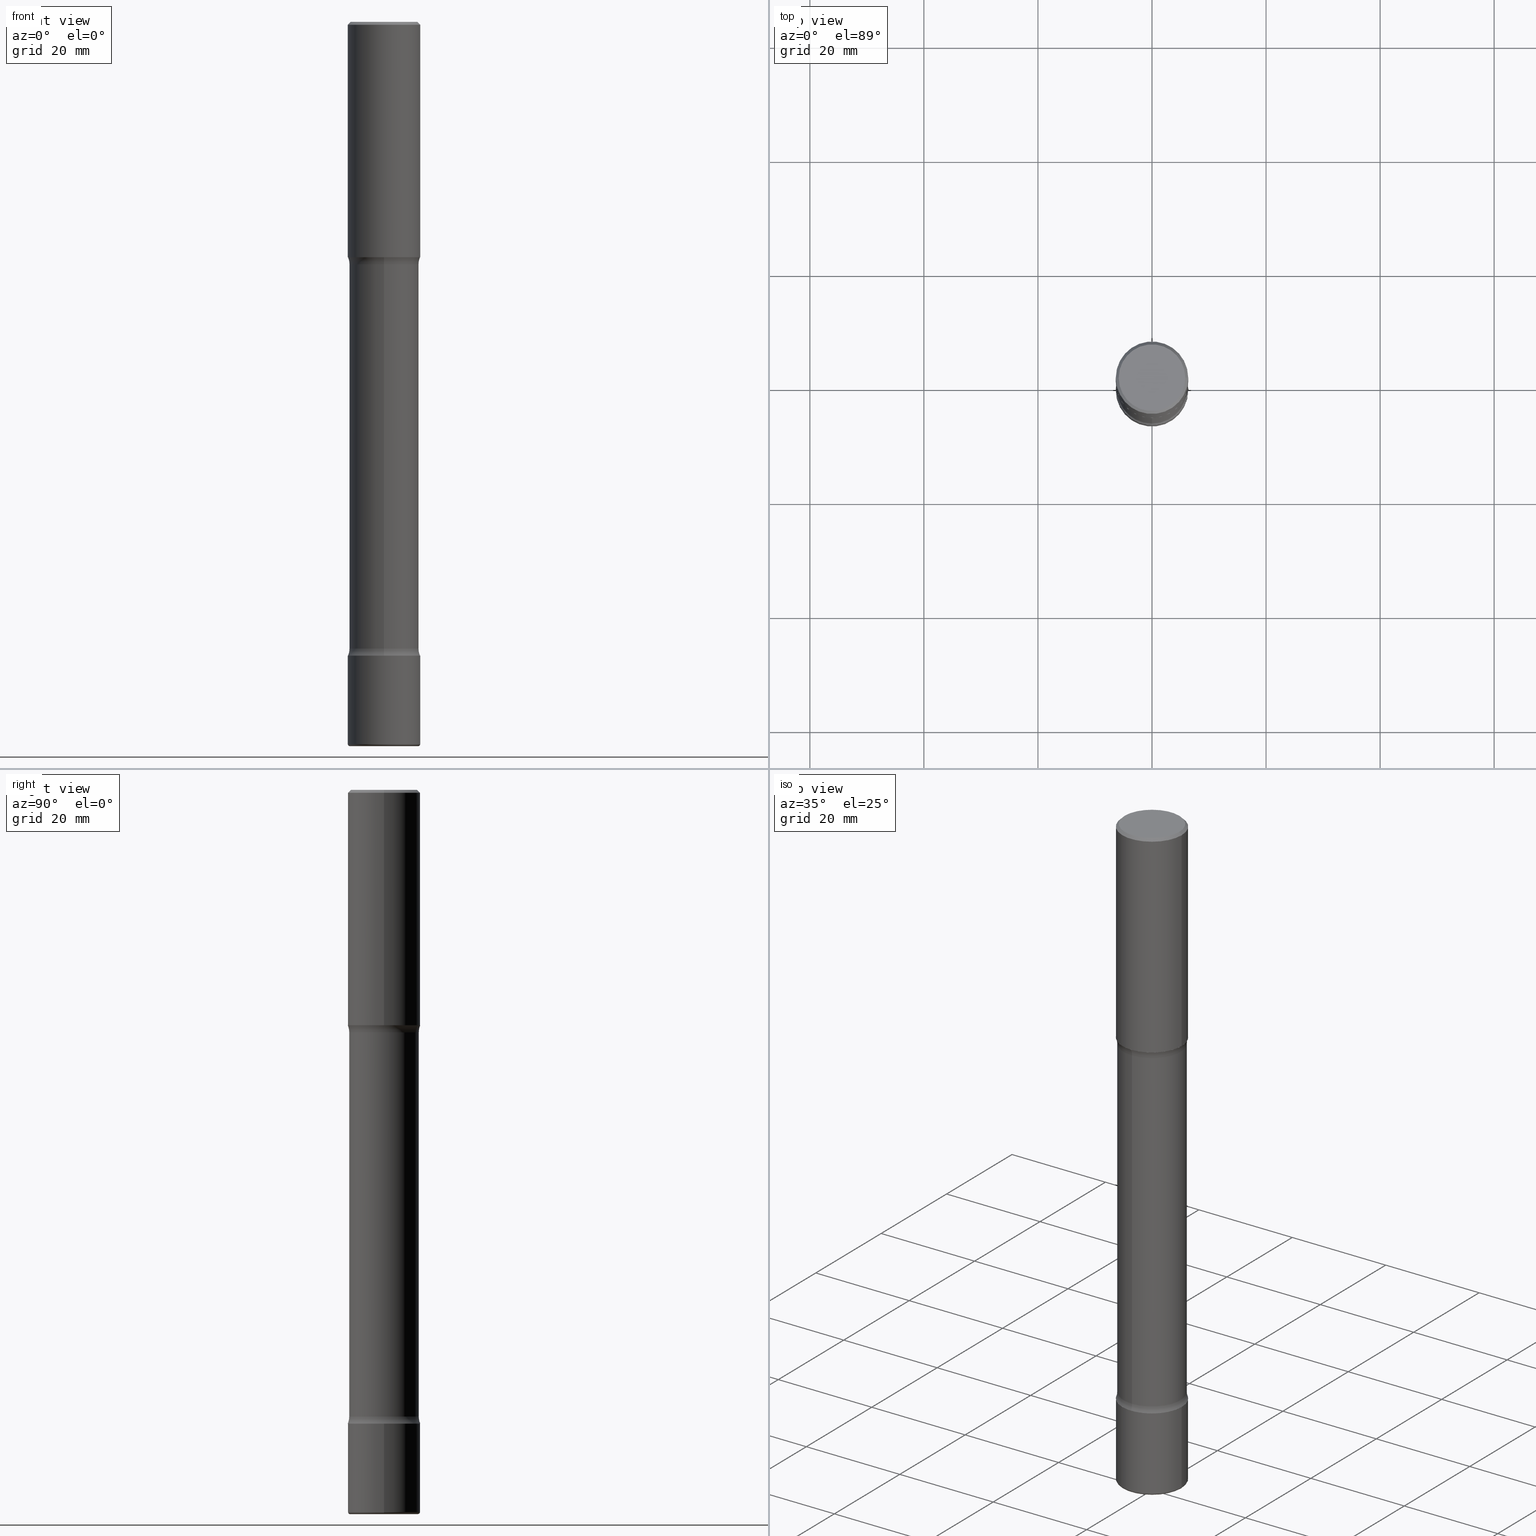
[diagram: canonical four-view strip — front | top / right | iso, engineering-drawing reading convention]
A machine part, canonical four-view strip (front | top / right | iso — engineering-drawing reading convention). The complete STEP part file that produces these views, byte-faithful:
ISO-10303-21;
HEADER;
FILE_DESCRIPTION (( 'STEP AP203' ),
    '1' );
FILE_NAME ('36245.STEP',
    '2024-03-01T23:40:14',
    ( '' ),
    ( '' ),
    'SwSTEP 2.0',
    'SolidWorks 2023',
    '' );
FILE_SCHEMA (( 'CONFIG_CONTROL_DESIGN' ));
ENDSEC;

DATA;
#1 = PRODUCT_DEFINITION ( 'UNKNOWN', '', #206, #421 ) ;
#2 = CIRCLE ( 'NONE', #455, 0.2500000000000002220 ) ;
#3 = TOROIDAL_SURFACE ( 'NONE', #432, 0.2350000000000001810, 0.01500000000000038629 ) ;
#4 = PERSON_AND_ORGANIZATION ( #102, #492 ) ;
#5 = LINE ( 'NONE', #212, #506 ) ;
#6 = UNCERTAINTY_MEASURE_WITH_UNIT (LENGTH_MEASURE( 1.000000000000000082E-05 ), #149, 'distance_accuracy_value', 'NONE');
#7 = CARTESIAN_POINT ( 'NONE',  ( 3.681485576885634284E-29, -6.435004074935638315E-15, -1.673989794855664570 ) ) ;
#8 = DIRECTION ( 'NONE',  ( 2.598079946832093802E-29, -3.272933499350004525E-15, -1.000000000000000000 ) ) ;
#9 = DIRECTION ( 'NONE',  ( 2.598079946832093802E-29, -3.272933499350004525E-15, -1.000000000000000000 ) ) ;
#10 = PERSON_AND_ORGANIZATION ( #102, #492 ) ;
#11 = CARTESIAN_POINT ( 'NONE',  ( 1.675911042644828414E-15, 0.2399999999999828659, -5.000000000000000888 ) ) ;
#12 = CARTESIAN_POINT ( 'NONE',  ( 2.548781377355594003E-15, 0.3649999999999850586, -4.326010205144337206 ) ) ;
#13 = DIRECTION ( 'NONE',  ( -2.445468806185136597E-29, 3.491481338843145583E-15, 1.000000000000000000 ) ) ;
#14 = APPROVAL_DATE_TIME ( #122, #281 ) ;
#15 =( GEOMETRIC_REPRESENTATION_CONTEXT ( 3 ) GLOBAL_UNCERTAINTY_ASSIGNED_CONTEXT ( ( #6 ) ) GLOBAL_UNIT_ASSIGNED_CONTEXT ( ( #149, #285, #73 ) ) REPRESENTATION_CONTEXT ( 'NONE', 'WORKASPACE' ) );
#16 = DIRECTION ( 'NONE',  ( 6.982962677686265922E-15, 1.000000000000000000, -3.272933499350004920E-15 ) ) ;
#17 = VERTEX_POINT ( 'NONE', #82 ) ;
#18 = VERTEX_POINT ( 'NONE', #258 ) ;
#19 = ORIENTED_EDGE ( 'NONE', *, *, #557, .F. ) ;
#20 = ORIENTED_EDGE ( 'NONE', *, *, #166, .T. ) ;
#21 = CYLINDRICAL_SURFACE ( 'NONE', #301, 0.2500000000000002220 ) ;
#22 = AXIS2_PLACEMENT_3D ( 'NONE', #120, #536, #494 ) ;
#23 = CARTESIAN_POINT ( 'NONE',  ( 1.232272599383003257E-28, -1.732081429453251623E-14, -5.000000000000000000 ) ) ;
#24 = CIRCLE ( 'NONE', #490, 0.2500000000000003331 ) ;
#25 = EDGE_CURVE ( 'NONE', #350, #401, #343, .T. ) ;
#26 = EDGE_LOOP ( 'NONE', ( #361, #137, #495, #245 ) ) ;
#27 = DIRECTION ( 'NONE',  ( -2.445468806185136597E-29, 3.491481338843145583E-15, 1.000000000000000000 ) ) ;
#28 = EDGE_CURVE ( 'NONE', #287, #450, #555, .T. ) ;
#29 = CARTESIAN_POINT ( 'NONE',  ( 0.2500000000000001110, -1.784954126219746583E-15, -0.02000000000000005246 ) ) ;
#30 = DIRECTION ( 'NONE',  ( 1.000000000000000000, -6.982962677686267499E-15, 4.876176775795936353E-29 ) ) ;
#31 = AXIS2_PLACEMENT_3D ( 'NONE', #224, #403, #176 ) ;
#32 = AXIS2_PLACEMENT_3D ( 'NONE', #530, #89, #16 ) ;
#33 = DIRECTION ( 'NONE',  ( 2.598079946832093802E-29, -3.272933499350004525E-15, -1.000000000000000000 ) ) ;
#34 = DIRECTION ( 'NONE',  ( 2.598079946832093802E-29, -3.272933499350004525E-15, -1.000000000000000000 ) ) ;
#35 = EDGE_CURVE ( 'NONE', #103, #347, #500, .T. ) ;
#36 = ORIENTED_EDGE ( 'NONE', *, *, #277, .F. ) ;
#37 = PLANE ( 'NONE',  #251 ) ;
#38 = CARTESIAN_POINT ( 'NONE',  ( 0.000000000000000000, 0.000000000000000000, 0.000000000000000000 ) ) ;
#39 = CARTESIAN_POINT ( 'NONE',  ( -0.2500000000000001110, 1.675911042644704563E-15, -0.02000000000000005246 ) ) ;
#40 = CIRCLE ( 'NONE', #31, 0.2300000000000001210 ) ;
#41 = LOCAL_TIME ( 18, 40, 14.00000000000000000, #467 ) ;
#42 = EDGE_CURVE ( 'NONE', #226, #437, #213, .T. ) ;
#43 = CALENDAR_DATE ( 2024, 1, 3 ) ;
#44 = DIRECTION ( 'NONE',  ( 2.445468806185136597E-29, -3.491481338843145583E-15, -1.000000000000000000 ) ) ;
#45 = CIRCLE ( 'NONE', #352, 0.2500000000000002220 ) ;
#46 = CALENDAR_DATE ( 2024, 1, 3 ) ;
#47 = SHAPE_DEFINITION_REPRESENTATION ( #356, #79 ) ;
#48 = CARTESIAN_POINT ( 'NONE',  ( 4.890937612370285420E-31, -6.982962677686308865E-17, -0.02000000000000005246 ) ) ;
#49 = DIRECTION ( 'NONE',  ( 6.982962677686265922E-15, 1.000000000000000000, -3.278217592397104818E-15 ) ) ;
#50 = DATE_AND_TIME ( #125, #41 ) ;
#51 = FACE_OUTER_BOUND ( 'NONE', #359, .T. ) ;
#52 = ORIENTED_EDGE ( 'NONE', *, *, #342, .F. ) ;
#53 = AXIS2_PLACEMENT_3D ( 'NONE', #136, #488, #305 ) ;
#54 = CIRCLE ( 'NONE', #64, 0.01500000000000038629 ) ;
#55 = ORIENTED_EDGE ( 'NONE', *, *, #214, .F. ) ;
#56 = ORIENTED_EDGE ( 'NONE', *, *, #447, .F. ) ;
#57 = DIRECTION ( 'NONE',  ( 2.438088387897960049E-29, -3.491481338843145188E-15, -1.000000000000000000 ) ) ;
#58 = VERTEX_POINT ( 'NONE', #529 ) ;
#59 = CARTESIAN_POINT ( 'NONE',  ( 1.069892602705997261E-28, -1.527523085743876365E-14, -4.375000000000000000 ) ) ;
#60 = ORIENTED_EDGE ( 'NONE', *, *, #447, .T. ) ;
#61 = DIRECTION ( 'NONE',  ( -2.445468806185136597E-29, 3.491481338843145583E-15, 1.000000000000000000 ) ) ;
#62 = ORIENTED_EDGE ( 'NONE', *, *, #458, .F. ) ;
#63 = ORIENTED_EDGE ( 'NONE', *, *, #324, .F. ) ;
#64 = AXIS2_PLACEMENT_3D ( 'NONE', #513, #132, #428 ) ;
#65 = DIRECTION ( 'NONE',  ( 2.598079946832093802E-29, -3.272933499350004525E-15, -1.000000000000000000 ) ) ;
#66 = EDGE_CURVE ( 'NONE', #414, #347, #395, .T. ) ;
#67 = FACE_OUTER_BOUND ( 'NONE', #504, .T. ) ;
#68 = CC_DESIGN_APPROVAL ( #174, ( #276 ) ) ;
#69 = EDGE_LOOP ( 'NONE', ( #123, #511, #173, #52 ) ) ;
#70 = DIRECTION ( 'NONE',  ( -2.438088387897960049E-29, 3.491481338843145188E-15, 1.000000000000000000 ) ) ;
#71 = FACE_OUTER_BOUND ( 'NONE', #417, .T. ) ;
#72 = DIRECTION ( 'NONE',  ( 1.000000000000000000, -6.982962677686265922E-15, 0.000000000000000000 ) ) ;
#73 =( NAMED_UNIT ( * ) SI_UNIT ( $, .STERADIAN. ) SOLID_ANGLE_UNIT ( ) );
#74 = EDGE_CURVE ( 'NONE', #401, #550, #515, .T. ) ;
#75 = DIRECTION ( 'NONE',  ( -2.445468806185136597E-29, 3.491481338843145583E-15, 1.000000000000000000 ) ) ;
#76 = AXIS2_PLACEMENT_3D ( 'NONE', #225, #479, #540 ) ;
#77 = AXIS2_PLACEMENT_3D ( 'NONE', #452, #199, #558 ) ;
#78 = DATE_TIME_ROLE ( 'classification_date' ) ;
#79 = ADVANCED_BREP_SHAPE_REPRESENTATION ( '36245', ( #375, #195, #192, #242 ), #15 ) ;
#80 = DIRECTION ( 'NONE',  ( 1.000000000000000000, -6.982962677686265922E-15, 0.000000000000000000 ) ) ;
#81 = CC_DESIGN_DATE_AND_TIME_ASSIGNMENT ( #295, #429, ( #1 ) ) ;
#82 = CARTESIAN_POINT ( 'NONE',  ( 1.745740669421674949E-15, 0.2499999999999849010, -4.375000000000000888 ) ) ;
#83 = VECTOR ( 'NONE', #231, 39.37007874015748143 ) ;
#84 = DATE_AND_TIME ( #43, #313 ) ;
#85 = EDGE_CURVE ( 'NONE', #234, #133, #40, .T. ) ;
#86 = CARTESIAN_POINT ( 'NONE',  ( 1.069892602705997261E-28, -1.527523085743876365E-14, -4.375000000000000000 ) ) ;
#87 = CARTESIAN_POINT ( 'NONE',  ( -1.680822009453992684E-15, -0.2400000000000068190, -1.673989794855663682 ) ) ;
#88 = PERSON_AND_ORGANIZATION ( #102, #492 ) ;
#89 = DIRECTION ( 'NONE',  ( 2.598079946832093802E-29, -3.272933499350004525E-15, -1.000000000000000000 ) ) ;
#90 = VERTEX_POINT ( 'NONE', #538 ) ;
#91 = EDGE_CURVE ( 'NONE', #18, #103, #141, .T. ) ;
#92 = DIRECTION ( 'NONE',  ( 2.598079946832093802E-29, -3.272933499350004525E-15, -1.000000000000000000 ) ) ;
#93 = PLANE ( 'NONE',  #76 ) ;
#94 = DIRECTION ( 'NONE',  ( 6.982962677686265922E-15, 1.000000000000000000, -3.272933499350004525E-15 ) ) ;
#95 = CLOSED_SHELL ( 'NONE', ( #109, #363, #497, #253, #167, #143 ) ) ;
#96 = AXIS2_PLACEMENT_3D ( 'NONE', #340, #302, #307 ) ;
#97 = ORIENTED_EDGE ( 'NONE', *, *, #380, .T. ) ;
#98 = EDGE_LOOP ( 'NONE', ( #227, #451, #399, #181 ) ) ;
#99 = ORIENTED_EDGE ( 'NONE', *, *, #74, .F. ) ;
#100 = DIRECTION ( 'NONE',  ( -2.445468806185136597E-29, 3.491481338843145583E-15, 1.000000000000000000 ) ) ;
#101 = CARTESIAN_POINT ( 'NONE',  ( -0.2500000000000002220, 1.776356839400252042E-15, -1.229733772563727566E-29 ) ) ;
#102 = PERSON ( 'UNSPECIFIED', 'UNSPECIFIED', 'UNSPECIFIED', ('UNSPECIFIED'), ('UNSPECIFIED'), ('UNSPECIFIED') ) ;
#103 = VERTEX_POINT ( 'NONE', #317 ) ;
#104 = FACE_OUTER_BOUND ( 'NONE', #160, .T. ) ;
#105 = CIRCLE ( 'NONE', #159, 0.1250000000000001110 ) ;
#106 = ORIENTED_EDGE ( 'NONE', *, *, #35, .T. ) ;
#107 = APPLICATION_CONTEXT ( 'configuration controlled 3d designs of mechanical parts and assemblies' ) ;
#108 = AXIS2_PLACEMENT_3D ( 'NONE', #152, #75, #72 ) ;
#109 = ADVANCED_FACE ( 'NONE', ( #104 ), #183, .T. ) ;
#110 = DIRECTION ( 'NONE',  ( 6.982962677686265922E-15, 1.000000000000000000, -3.272933499350004920E-15 ) ) ;
#111 = ADVANCED_FACE ( 'NONE', ( #411 ), #406, .T. ) ;
#112 = FACE_OUTER_BOUND ( 'NONE', #223, .T. ) ;
#113 = DIRECTION ( 'NONE',  ( 6.982962677686265922E-15, 1.000000000000000000, -4.553079989440435148E-15 ) ) ;
#114 = TOROIDAL_SURFACE ( 'NONE', #32, 0.3650000000000001577, 0.1250000000000000833 ) ;
#115 = AXIS2_PLACEMENT_3D ( 'NONE', #378, #249, #331 ) ;
#116 = DIRECTION ( 'NONE',  ( -6.982962677686264344E-15, -1.000000000000000000, 0.000000000000000000 ) ) ;
#117 = DIRECTION ( 'NONE',  ( 1.000000000000000000, -6.982962677686267499E-15, 4.876176775795936353E-29 ) ) ;
#118 = CIRCLE ( 'NONE', #438, 0.2500000000000001665 ) ;
#119 = LOCAL_TIME ( 18, 40, 14.00000000000000000, #481 ) ;
#120 = CARTESIAN_POINT ( 'NONE',  ( 1.219066199883290567E-28, -1.740503447413308005E-14, -4.984999999999999432 ) ) ;
#121 = EDGE_CURVE ( 'NONE', #226, #230, #334, .T. ) ;
#122 = DATE_AND_TIME ( #46, #119 ) ;
#123 = ORIENTED_EDGE ( 'NONE', *, *, #275, .F. ) ;
#124 = CARTESIAN_POINT ( 'NONE',  ( 1.057164662344605565E-28, -1.511489051672937447E-14, -4.326010205144336318 ) ) ;
#125 = CALENDAR_DATE ( 2024, 1, 3 ) ;
#126 = CIRCLE ( 'NONE', #178, 0.2500000000000008327 ) ;
#127 = CALENDAR_DATE ( 2024, 1, 3 ) ;
#128 = PLANE ( 'NONE',  #371 ) ;
#129 = CARTESIAN_POINT ( 'NONE',  ( 0.2500000000000002220, -1.745740669421568453E-15, 1.219044193948985209E-29 ) ) ;
#130 = APPLICATION_CONTEXT ( 'configuration controlled 3d designs of mechanical parts and assemblies' ) ;
#131 = DIRECTION ( 'NONE',  ( 1.000000000000000000, -6.982962677686269077E-15, 0.000000000000000000 ) ) ;
#132 = DIRECTION ( 'NONE',  ( -6.982962677686266711E-15, -1.000000000000000000, 3.491481338843145583E-15 ) ) ;
#133 = VERTEX_POINT ( 'NONE', #260 ) ;
#134 = ORIENTED_EDGE ( 'NONE', *, *, #326, .F. ) ;
#135 = ORIENTED_EDGE ( 'NONE', *, *, #198, .T. ) ;
#136 = CARTESIAN_POINT ( 'NONE',  ( 4.890937612370285420E-31, -6.982962677686308865E-17, -0.02000000000000005246 ) ) ;
#137 = ORIENTED_EDGE ( 'NONE', *, *, #74, .T. ) ;
#138 = AXIS2_PLACEMENT_3D ( 'NONE', #270, #27, #182 ) ;
#139 = TOROIDAL_SURFACE ( 'NONE', #547, 0.3650000000000004907, 0.1250000000000000555 ) ;
#140 = ORIENTED_EDGE ( 'NONE', *, *, #508, .F. ) ;
#141 = LINE ( 'NONE', #101, #153 ) ;
#142 = CC_DESIGN_PERSON_AND_ORGANIZATION_ASSIGNMENT ( #430, #521, ( #265 ) ) ;
#143 = ADVANCED_FACE ( 'NONE', ( #441 ), #93, .F. ) ;
#144 = ORIENTED_EDGE ( 'NONE', *, *, #324, .T. ) ;
#145 = CLOSED_SHELL ( 'NONE', ( #522, #204, #186, #292, #544, #491 ) ) ;
#146 = AXIS2_PLACEMENT_3D ( 'NONE', #124, #8, #341 ) ;
#147 = CARTESIAN_POINT ( 'NONE',  ( -0.2500000000000003886, -1.562867763473282642E-14, -4.984999999999999432 ) ) ;
#148 = ORIENTED_EDGE ( 'NONE', *, *, #35, .F. ) ;
#149 =( CONVERSION_BASED_UNIT ( 'INCH', #151 ) LENGTH_UNIT ( ) NAMED_UNIT ( #499 ) );
#150 = ORIENTED_EDGE ( 'NONE', *, *, #28, .F. ) ;
#151 = LENGTH_MEASURE_WITH_UNIT ( LENGTH_MEASURE( 0.02539999999999999897 ), #366 );
#152 = CARTESIAN_POINT ( 'NONE',  ( 1.219066199883290567E-28, -1.740503447413308005E-14, -4.984999999999999432 ) ) ;
#153 = VECTOR ( 'NONE', #446, 39.37007874015748143 ) ;
#154 = CARTESIAN_POINT ( 'NONE',  ( 1.222734403092568523E-28, -1.745740669421572989E-14, -5.000000000000000000 ) ) ;
#155 = PLANE ( 'NONE',  #255 ) ;
#156 = PERSON_AND_ORGANIZATION_ROLE ( 'creator' ) ;
#157 = EDGE_CURVE ( 'NONE', #287, #226, #396, .T. ) ;
#158 = VECTOR ( 'NONE', #92, 39.37007874015748143 ) ;
#159 = AXIS2_PLACEMENT_3D ( 'NONE', #518, #309, #551 ) ;
#160 = EDGE_LOOP ( 'NONE', ( #308, #135, #134, #140 ) ) ;
#161 = AXIS2_PLACEMENT_3D ( 'NONE', #509, #328, #330 ) ;
#162 = APPROVAL_ROLE ( '' ) ;
#163 = CARTESIAN_POINT ( 'NONE',  ( 3.664470992122216789E-29, -6.459369928726877002E-15, -1.673989794855664570 ) ) ;
#164 = CARTESIAN_POINT ( 'NONE',  ( 0.2350000000000001255, -1.909840292347200004E-14, -5.000000000000000000 ) ) ;
#165 = MECHANICAL_CONTEXT ( 'NONE', #107, 'mechanical' ) ;
#166 = EDGE_CURVE ( 'NONE', #347, #103, #476, .T. ) ;
#167 = ADVANCED_FACE ( 'NONE', ( #365 ), #21, .T. ) ;
#168 = AXIS2_PLACEMENT_3D ( 'NONE', #196, #65, #110 ) ;
#169 = PERSON_AND_ORGANIZATION_ROLE ( 'creator' ) ;
#170 = FACE_OUTER_BOUND ( 'NONE', #472, .T. ) ;
#171 = DIRECTION ( 'NONE',  ( 6.860497997771530774E-15, 1.000000000000000000, 0.000000000000000000 ) ) ;
#172 = VERTEX_POINT ( 'NONE', #278 ) ;
#173 = ORIENTED_EDGE ( 'NONE', *, *, #42, .T. ) ;
#174 = APPROVAL ( #393, 'UNSPECIFIED' ) ;
#175 = EDGE_LOOP ( 'NONE', ( #184, #289, #318, #274 ) ) ;
#176 = DIRECTION ( 'NONE',  ( 1.000000000000000000, -6.982962677686265922E-15, 4.876225828469306079E-29 ) ) ;
#177 = VECTOR ( 'NONE', #484, 39.37007874015748143 ) ;
#178 = AXIS2_PLACEMENT_3D ( 'NONE', #364, #33, #505 ) ;
#179 = ORIENTED_EDGE ( 'NONE', *, *, #338, .F. ) ;
#180 = EDGE_CURVE ( 'NONE', #133, #234, #431, .T. ) ;
#181 = ORIENTED_EDGE ( 'NONE', *, *, #380, .F. ) ;
#182 = DIRECTION ( 'NONE',  ( 1.000000000000000000, -6.982962677686265922E-15, 4.876225828469306079E-29 ) ) ;
#183 = CYLINDRICAL_SURFACE ( 'NONE', #232, 0.2500000000000002220 ) ;
#184 = ORIENTED_EDGE ( 'NONE', *, *, #557, .T. ) ;
#185 = ORIENTED_EDGE ( 'NONE', *, *, #85, .T. ) ;
#186 = ADVANCED_FACE ( 'NONE', ( #360 ), #293, .T. ) ;
#187 = CARTESIAN_POINT ( 'NONE',  ( 1.222734403092568523E-28, -1.745740669421572989E-14, -5.000000000000000000 ) ) ;
#188 = CONICAL_SURFACE ( 'NONE', #362, 0.2500000000000001110, 0.7853981633974476129 ) ;
#189 = CIRCLE ( 'NONE', #96, 0.2399999999999999634 ) ;
#190 = EDGE_LOOP ( 'NONE', ( #409, #459, #279, #148 ) ) ;
#191 = CARTESIAN_POINT ( 'NONE',  ( 3.973886810050846970E-29, -5.673657175620112213E-15, -1.625000000000000000 ) ) ;
#192 = MANIFOLD_SOLID_BREP ( 'Body-Move/Copy2[4]', #537 ) ;
#193 = CARTESIAN_POINT ( 'NONE',  ( 1.219066199883290567E-28, -1.740503447413308005E-14, -4.984999999999999432 ) ) ;
#194 = DIRECTION ( 'NONE',  ( 1.000000000000000000, -6.982962677686265922E-15, 4.876176775795935793E-29 ) ) ;
#195 = MANIFOLD_SOLID_BREP ( 'Body-Move/Copy2[2]', #145 ) ;
#196 = CARTESIAN_POINT ( 'NONE',  ( 1.057912301191903975E-28, -1.510418390290645794E-14, -4.326010205144336318 ) ) ;
#197 = LOCAL_TIME ( 18, 40, 14.00000000000000000, #202 ) ;
#198 = EDGE_CURVE ( 'NONE', #550, #90, #5, .T. ) ;
#199 = DIRECTION ( 'NONE',  ( 2.598079946832093802E-29, -3.272933499350004525E-15, -1.000000000000000000 ) ) ;
#200 = ADVANCED_FACE ( 'NONE', ( #51 ), #128, .F. ) ;
#201 = DIRECTION ( 'NONE',  ( -2.445468806185136597E-29, 3.491481338843145583E-15, 1.000000000000000000 ) ) ;
#202 = COORDINATED_UNIVERSAL_TIME_OFFSET ( 5, 0, .BEHIND. ) ;
#203 = CARTESIAN_POINT ( 'NONE',  ( 1.675911042644743611E-15, 0.2399999999999939959, -1.673989794855665458 ) ) ;
#204 = ADVANCED_FACE ( 'NONE', ( #170 ), #188, .T. ) ;
#205 = CIRCLE ( 'NONE', #282, 0.2500000000000008327 ) ;
#206 = PRODUCT_DEFINITION_FORMATION_WITH_SPECIFIED_SOURCE ( 'ANY', '', #265, .NOT_KNOWN. ) ;
#207 = CARTESIAN_POINT ( 'NONE',  ( -0.2350000000000001255, -1.570815444995615772E-14, -5.000000000000000000 ) ) ;
#208 = ORIENTED_EDGE ( 'NONE', *, *, #348, .F. ) ;
#209 = PERSON_AND_ORGANIZATION_ROLE ( 'design_supplier' ) ;
#210 = DIRECTION ( 'NONE',  ( 2.598079946832093802E-29, -3.272933499350004525E-15, -1.000000000000000000 ) ) ;
#211 = CARTESIAN_POINT ( 'NONE',  ( 3.554206173271715077E-29, -6.274663734226250712E-15, -1.625000000000000222 ) ) ;
#212 = CARTESIAN_POINT ( 'NONE',  ( -0.2500000000000002220, 1.776356839400252042E-15, -1.229733772563727566E-29 ) ) ;
#213 = LINE ( 'NONE', #11, #158 ) ;
#214 = EDGE_CURVE ( 'NONE', #550, #402, #118, .T. ) ;
#215 = PERSON_AND_ORGANIZATION ( #102, #492 ) ;
#216 = CARTESIAN_POINT ( 'NONE',  ( 0.2500000000000001110, -1.784954126219746583E-15, -0.02000000000000005246 ) ) ;
#217 = AXIS2_PLACEMENT_3D ( 'NONE', #460, #100, #416 ) ;
#218 = DIRECTION ( 'NONE',  ( 0.7071067811865469066, -7.319954787623252890E-15, -0.7071067811865479058 ) ) ;
#219 = CIRCLE ( 'NONE', #108, 0.2500000000000001665 ) ;
#220 = ORIENTED_EDGE ( 'NONE', *, *, #157, .F. ) ;
#221 = ORIENTED_EDGE ( 'NONE', *, *, #348, .T. ) ;
#222 = APPROVAL ( #531, 'UNSPECIFIED' ) ;
#223 = EDGE_LOOP ( 'NONE', ( #525, #62 ) ) ;
#224 = CARTESIAN_POINT ( 'NONE',  ( -1.043851414335219820E-46, 1.490343170380447200E-32, 4.268512490100411279E-18 ) ) ;
#225 = CARTESIAN_POINT ( 'NONE',  ( 1.069892602705997261E-28, -1.527523085743876365E-14, -4.375000000000000000 ) ) ;
#226 = VERTEX_POINT ( 'NONE', #203 ) ;
#227 = ORIENTED_EDGE ( 'NONE', *, *, #198, .F. ) ;
#228 = CARTESIAN_POINT ( 'NONE',  ( 0.000000000000000000, 0.000000000000000000, 0.000000000000000000 ) ) ;
#229 = DIRECTION ( 'NONE',  ( 1.000000000000000000, -6.982962677686266711E-15, 4.876176775795935232E-29 ) ) ;
#230 = VERTEX_POINT ( 'NONE', #427 ) ;
#231 = DIRECTION ( 'NONE',  ( 2.598079946832093802E-29, -3.272933499350004525E-15, -1.000000000000000000 ) ) ;
#232 = AXIS2_PLACEMENT_3D ( 'NONE', #271, #61, #229 ) ;
#233 = CIRCLE ( 'NONE', #419, 0.2350000000000001255 ) ;
#234 = VERTEX_POINT ( 'NONE', #333 ) ;
#235 = ORIENTED_EDGE ( 'NONE', *, *, #368, .T. ) ;
#236 = CARTESIAN_POINT ( 'NONE',  ( -1.646519519465045286E-15, -0.2400000000000174771, -4.999999999999999112 ) ) ;
#237 = CC_DESIGN_PERSON_AND_ORGANIZATION_ASSIGNMENT ( #215, #169, ( #1 ) ) ;
#238 = DIRECTION ( 'NONE',  ( -1.000000000000000000, 6.982962677686265922E-15, -4.883557194083112340E-29 ) ) ;
#239 = EDGE_LOOP ( 'NONE', ( #386, #97 ) ) ;
#240 = AXIS2_PLACEMENT_3D ( 'NONE', #440, #57, #443 ) ;
#241 = FACE_OUTER_BOUND ( 'NONE', #175, .T. ) ;
#242 = AXIS2_PLACEMENT_3D ( 'NONE', #332, #304, #519 ) ;
#243 = AXIS2_PLACEMENT_3D ( 'NONE', #7, #478, #257 ) ;
#244 = CARTESIAN_POINT ( 'NONE',  ( 1.232272599383003257E-28, -1.732081429453251623E-14, -5.000000000000000000 ) ) ;
#245 = ORIENTED_EDGE ( 'NONE', *, *, #398, .F. ) ;
#246 = CC_DESIGN_DATE_AND_TIME_ASSIGNMENT ( #50, #78, ( #276 ) ) ;
#247 = FACE_OUTER_BOUND ( 'NONE', #190, .T. ) ;
#248 = DIRECTION ( 'NONE',  ( -2.445468806185136877E-29, 3.491481338843145188E-15, 1.000000000000000000 ) ) ;
#249 = DIRECTION ( 'NONE',  ( -2.445468806185136597E-29, 3.491481338843145583E-15, 1.000000000000000000 ) ) ;
#250 = AXIS2_PLACEMENT_3D ( 'NONE', #262, #297, #336 ) ;
#251 = AXIS2_PLACEMENT_3D ( 'NONE', #559, #70, #194 ) ;
#252 = COORDINATED_UNIVERSAL_TIME_OFFSET ( 5, 0, .BEHIND. ) ;
#253 = ADVANCED_FACE ( 'NONE', ( #377 ), #448, .T. ) ;
#254 = AXIS2_PLACEMENT_3D ( 'NONE', #376, #306, #171 ) ;
#255 = AXIS2_PLACEMENT_3D ( 'NONE', #154, #454, #425 ) ;
#256 = APPROVAL_DATE_TIME ( #84, #174 ) ;
#257 = DIRECTION ( 'NONE',  ( 6.982962677686265922E-15, 1.000000000000000000, -3.414809992080323205E-15 ) ) ;
#258 = CARTESIAN_POINT ( 'NONE',  ( -0.2500000000000003331, -1.095386561798233741E-15, -1.625000000000000000 ) ) ;
#259 = PERSON_AND_ORGANIZATION ( #102, #492 ) ;
#260 = CARTESIAN_POINT ( 'NONE',  ( 0.2300000000000001210, -1.681434332853599997E-15, 4.268512490111905999E-18 ) ) ;
#261 = EDGE_LOOP ( 'NONE', ( #63, #56 ) ) ;
#262 = CARTESIAN_POINT ( 'NONE',  ( -0.2350000000000001810, -1.573525904509684234E-14, -4.984999999999999432 ) ) ;
#263 = FACE_OUTER_BOUND ( 'NONE', #487, .T. ) ;
#264 = APPROVAL_PERSON_ORGANIZATION ( #475, #174, #162 ) ;
#265 = PRODUCT ( '36245', '36245', '', ( #165 ) ) ;
#266 = DIRECTION ( 'NONE',  ( -1.000000000000000000, 6.982962677686265922E-15, -4.883557194083112340E-29 ) ) ;
#267 = ORIENTED_EDGE ( 'NONE', *, *, #296, .T. ) ;
#268 = EDGE_CURVE ( 'NONE', #172, #357, #105, .T. ) ;
#269 = ORIENTED_EDGE ( 'NONE', *, *, #342, .T. ) ;
#270 = CARTESIAN_POINT ( 'NONE',  ( -1.043851414335219820E-46, 1.490343170380447200E-32, 4.268512490100411279E-18 ) ) ;
#271 = CARTESIAN_POINT ( 'NONE',  ( 0.000000000000000000, 0.000000000000000000, 0.000000000000000000 ) ) ;
#272 = ORIENTED_EDGE ( 'NONE', *, *, #277, .T. ) ;
#273 = DIRECTION ( 'NONE',  ( 2.598079946832093802E-29, -3.272933499350004525E-15, -1.000000000000000000 ) ) ;
#274 = ORIENTED_EDGE ( 'NONE', *, *, #66, .F. ) ;
#275 = EDGE_CURVE ( 'NONE', #287, #357, #320, .T. ) ;
#276 = SECURITY_CLASSIFICATION ( '', '', #470 ) ;
#277 = EDGE_CURVE ( 'NONE', #133, #347, #413, .T. ) ;
#278 = CARTESIAN_POINT ( 'NONE',  ( -1.715124499442776986E-15, -0.2500000000000154321, -4.375000000000000000 ) ) ;
#279 = ORIENTED_EDGE ( 'NONE', *, *, #66, .T. ) ;
#280 = CARTESIAN_POINT ( 'NONE',  ( 0.2500000000000002220, -1.745740669421568255E-15, 1.219044193948984929E-29 ) ) ;
#281 = APPROVAL ( #300, 'UNSPECIFIED' ) ;
#282 = AXIS2_PLACEMENT_3D ( 'NONE', #211, #9, #49 ) ;
#283 = CARTESIAN_POINT ( 'NONE',  ( 1.675911042644809481E-15, 0.2399999999999848366, -4.326010205144337206 ) ) ;
#284 = CIRCLE ( 'NONE', #539, 0.2500000000000003331 ) ;
#285 =( NAMED_UNIT ( * ) PLANE_ANGLE_UNIT ( ) SI_UNIT ( $, .RADIAN. ) );
#286 = ADVANCED_FACE ( 'NONE', ( #486 ), #407, .F. ) ;
#287 = VERTEX_POINT ( 'NONE', #87 ) ;
#288 = FACE_OUTER_BOUND ( 'NONE', #26, .T. ) ;
#289 = ORIENTED_EDGE ( 'NONE', *, *, #91, .T. ) ;
#290 = APPROVAL_ROLE ( '' ) ;
#291 = DIRECTION ( 'NONE',  ( -1.000000000000000000, 6.982962677686267499E-15, 0.000000000000000000 ) ) ;
#292 = ADVANCED_FACE ( 'NONE', ( #263 ), #496, .F. ) ;
#293 = CONICAL_SURFACE ( 'NONE', #53, 0.2500000000000001110, 0.7853981633974476129 ) ;
#294 = VECTOR ( 'NONE', #248, 39.37007874015748143 ) ;
#295 = DATE_AND_TIME ( #526, #556 ) ;
#296 = EDGE_CURVE ( 'NONE', #17, #172, #2, .T. ) ;
#297 = DIRECTION ( 'NONE',  ( 7.105427357601001859E-15, 1.000000000000000000, -3.491481338843145583E-15 ) ) ;
#298 = DATE_AND_TIME ( #127, #197 ) ;
#299 = ORIENTED_EDGE ( 'NONE', *, *, #268, .F. ) ;
#300 = APPROVAL_STATUS ( 'not_yet_approved' ) ;
#301 = AXIS2_PLACEMENT_3D ( 'NONE', #228, #410, #549 ) ;
#302 = DIRECTION ( 'NONE',  ( 2.598079946832093802E-29, -3.272933499350004525E-15, -1.000000000000000000 ) ) ;
#303 = CIRCLE ( 'NONE', #243, 0.2400000000000004075 ) ;
#304 = DIRECTION ( 'NONE',  ( 0.000000000000000000, 0.000000000000000000, 1.000000000000000000 ) ) ;
#305 = DIRECTION ( 'NONE',  ( -1.000000000000000000, 6.982962677686267499E-15, 0.000000000000000000 ) ) ;
#306 = DIRECTION ( 'NONE',  ( 1.000000000000000000, -6.860497997771530774E-15, 4.843475318745101421E-29 ) ) ;
#307 = DIRECTION ( 'NONE',  ( 6.982962677686265922E-15, 1.000000000000000000, -2.276539994720219546E-15 ) ) ;
#308 = ORIENTED_EDGE ( 'NONE', *, *, #370, .T. ) ;
#309 = DIRECTION ( 'NONE',  ( 1.000000000000000000, -6.860497997771530774E-15, 4.843475318745101421E-29 ) ) ;
#310 = EDGE_LOOP ( 'NONE', ( #535, #533, #269, #445 ) ) ;
#311 = DIRECTION ( 'NONE',  ( 2.598079946832093802E-29, -3.272933499350004525E-15, -1.000000000000000000 ) ) ;
#312 = ORIENTED_EDGE ( 'NONE', *, *, #42, .F. ) ;
#313 = LOCAL_TIME ( 18, 40, 14.00000000000000000, #252 ) ;
#314 = CARTESIAN_POINT ( 'NONE',  ( 3.681485576885634284E-29, -6.435004074935638315E-15, -1.673989794855664570 ) ) ;
#315 = ORIENTED_EDGE ( 'NONE', *, *, #368, .F. ) ;
#316 = ORIENTED_EDGE ( 'NONE', *, *, #404, .F. ) ;
#317 = CARTESIAN_POINT ( 'NONE',  ( -0.2500000000000001110, 1.675911042644704563E-15, -0.02000000000000005246 ) ) ;
#318 = ORIENTED_EDGE ( 'NONE', *, *, #166, .F. ) ;
#319 = ORIENTED_EDGE ( 'NONE', *, *, #180, .T. ) ;
#320 = LINE ( 'NONE', #236, #83 ) ;
#321 = AXIS2_PLACEMENT_3D ( 'NONE', #512, #266, #493 ) ;
#322 = TOROIDAL_SURFACE ( 'NONE', #168, 0.3650000000000001577, 0.1250000000000000833 ) ;
#323 = DIRECTION ( 'NONE',  ( -2.445468806185136597E-29, 3.491481338843145583E-15, 1.000000000000000000 ) ) ;
#324 = EDGE_CURVE ( 'NONE', #230, #450, #205, .T. ) ;
#325 = EDGE_LOOP ( 'NONE', ( #221, #546, #316, #312 ) ) ;
#326 = EDGE_CURVE ( 'NONE', #58, #90, #45, .T. ) ;
#327 = CYLINDRICAL_SURFACE ( 'NONE', #468, 0.2500000000000002220 ) ;
#328 = DIRECTION ( 'NONE',  ( 2.598079946832093241E-29, -3.272933499350004525E-15, -1.000000000000000000 ) ) ;
#329 = ADVANCED_FACE ( 'NONE', ( #436 ), #114, .F. ) ;
#330 = DIRECTION ( 'NONE',  ( 6.982962677686265922E-15, 1.000000000000000000, -3.272933499350004525E-15 ) ) ;
#331 = DIRECTION ( 'NONE',  ( 1.000000000000000000, -6.982962677686264344E-15, 0.000000000000000000 ) ) ;
#332 = CARTESIAN_POINT ( 'NONE',  ( 0.000000000000000000, 0.000000000000000000, 0.000000000000000000 ) ) ;
#333 = CARTESIAN_POINT ( 'NONE',  ( -0.2300000000000001210, 1.640996229256273111E-15, 4.268512490089056766E-18 ) ) ;
#334 = CIRCLE ( 'NONE', #321, 0.1250000000000000555 ) ;
#335 = AXIS2_PLACEMENT_3D ( 'NONE', #12, #238, #116 ) ;
#336 = DIRECTION ( 'NONE',  ( -1.000000000000000000, 7.105427357601066545E-15, 0.000000000000000000 ) ) ;
#337 = APPROVAL_ROLE ( '' ) ;
#338 = EDGE_CURVE ( 'NONE', #18, #414, #284, .T. ) ;
#339 = DIRECTION ( 'NONE',  ( -2.445468806185136597E-29, 3.491481338843145583E-15, 1.000000000000000000 ) ) ;
#340 = CARTESIAN_POINT ( 'NONE',  ( 1.057164662344605565E-28, -1.511489051672937447E-14, -4.326010205144336318 ) ) ;
#341 = DIRECTION ( 'NONE',  ( 6.982962677686265922E-15, 1.000000000000000000, -2.276539994720219546E-15 ) ) ;
#342 = EDGE_CURVE ( 'NONE', #357, #437, #189, .T. ) ;
#343 = CIRCLE ( 'NONE', #466, 0.2350000000000001255 ) ;
#344 = DIRECTION ( 'NONE',  ( 6.982962677686265922E-15, 1.000000000000000000, -3.414809992080323205E-15 ) ) ;
#345 = CARTESIAN_POINT ( 'NONE',  ( 1.222734403092568523E-28, -1.745740669421572989E-14, -5.000000000000000000 ) ) ;
#346 = DIRECTION ( 'NONE',  ( -2.598079946832093241E-29, 3.272933499350004525E-15, 1.000000000000000000 ) ) ;
#347 = VERTEX_POINT ( 'NONE', #216 ) ;
#348 = EDGE_CURVE ( 'NONE', #226, #287, #303, .T. ) ;
#349 = ORIENTED_EDGE ( 'NONE', *, *, #433, .T. ) ;
#350 = VERTEX_POINT ( 'NONE', #164 ) ;
#351 = EDGE_LOOP ( 'NONE', ( #99, #534, #501, #55 ) ) ;
#352 = AXIS2_PLACEMENT_3D ( 'NONE', #86, #434, #485 ) ;
#353 = EDGE_LOOP ( 'NONE', ( #150, #208, #498, #144 ) ) ;
#354 = CIRCLE ( 'NONE', #115, 0.2500000000000002220 ) ;
#355 = ADVANCED_FACE ( 'NONE', ( #524 ), #385, .T. ) ;
#356 = PRODUCT_DEFINITION_SHAPE ( 'NONE', 'NONE',  #1 ) ;
#357 = VERTEX_POINT ( 'NONE', #424 ) ;
#358 = DIRECTION ( 'NONE',  ( 2.598079946832093802E-29, -3.272933499350004525E-15, -1.000000000000000000 ) ) ;
#359 = EDGE_LOOP ( 'NONE', ( #267, #439 ) ) ;
#360 = FACE_OUTER_BOUND ( 'NONE', #392, .T. ) ;
#361 = ORIENTED_EDGE ( 'NONE', *, *, #25, .T. ) ;
#362 = AXIS2_PLACEMENT_3D ( 'NONE', #532, #44, #291 ) ;
#363 = ADVANCED_FACE ( 'NONE', ( #288 ), #3, .T. ) ;
#364 = CARTESIAN_POINT ( 'NONE',  ( 3.554206173271715077E-29, -6.274663734226250712E-15, -1.625000000000000222 ) ) ;
#365 = FACE_OUTER_BOUND ( 'NONE', #98, .T. ) ;
#366 =( LENGTH_UNIT ( ) NAMED_UNIT ( * ) SI_UNIT ( $, .METRE. ) );
#367 = DIRECTION ( 'NONE',  ( -2.445468806185136597E-29, 3.491481338843145583E-15, 1.000000000000000000 ) ) ;
#368 = EDGE_CURVE ( 'NONE', #234, #103, #554, .T. ) ;
#369 = DIRECTION ( 'NONE',  ( 1.000000000000000000, -6.982962677686269077E-15, 0.000000000000000000 ) ) ;
#370 = EDGE_CURVE ( 'NONE', #402, #550, #219, .T. ) ;
#371 = AXIS2_PLACEMENT_3D ( 'NONE', #394, #346, #483 ) ;
#372 = CARTESIAN_POINT ( 'NONE',  ( -1.715124499442852322E-15, -0.2500000000000070499, -1.624999999999999556 ) ) ;
#373 = CIRCLE ( 'NONE', #335, 0.1250000000000001110 ) ;
#374 = DIRECTION ( 'NONE',  ( 1.000000000000000000, -6.982962677686258822E-15, 0.000000000000000000 ) ) ;
#375 = MANIFOLD_SOLID_BREP ( 'Body-Move/Copy2[1]', #95 ) ;
#376 = CARTESIAN_POINT ( 'NONE',  ( -2.504081769186575083E-15, -0.3650000000000069855, -1.673989794855663460 ) ) ;
#377 = FACE_OUTER_BOUND ( 'NONE', #351, .T. ) ;
#378 = CARTESIAN_POINT ( 'NONE',  ( 1.069892602705997261E-28, -1.527523085743876365E-14, -4.375000000000000000 ) ) ;
#379 = PERSON_AND_ORGANIZATION_ROLE ( 'classification_officer' ) ;
#380 = EDGE_CURVE ( 'NONE', #90, #58, #354, .T. ) ;
#381 = AXIS2_PLACEMENT_3D ( 'NONE', #23, #358, #541 ) ;
#382 = CC_DESIGN_APPROVAL ( #281, ( #1 ) ) ;
#383 = ORIENTED_EDGE ( 'NONE', *, *, #296, .F. ) ;
#384 = APPLICATION_PROTOCOL_DEFINITION ( 'international standard', 'config_control_design', 1994, #107 ) ;
#385 = CYLINDRICAL_SURFACE ( 'NONE', #507, 0.2400000000000001854 ) ;
#386 = ORIENTED_EDGE ( 'NONE', *, *, #326, .T. ) ;
#387 = DIRECTION ( 'NONE',  ( 6.982962677686265133E-15, 1.000000000000000000, -2.185478394931408603E-15 ) ) ;
#388 = APPLICATION_PROTOCOL_DEFINITION ( 'international standard', 'config_control_design', 1994, #130 ) ;
#389 = DIRECTION ( 'NONE',  ( -2.445468806185136877E-29, 3.491481338843145188E-15, 1.000000000000000000 ) ) ;
#390 = FACE_OUTER_BOUND ( 'NONE', #442, .T. ) ;
#391 = CARTESIAN_POINT ( 'NONE',  ( 3.973886810050846970E-29, -5.673657175620112213E-15, -1.625000000000000000 ) ) ;
#392 = EDGE_LOOP ( 'NONE', ( #36, #405, #235, #106 ) ) ;
#393 = APPROVAL_STATUS ( 'not_yet_approved' ) ;
#394 = CARTESIAN_POINT ( 'NONE',  ( 1.069892602705997261E-28, -1.527523085743876365E-14, -4.375000000000000000 ) ) ;
#395 = LINE ( 'NONE', #129, #177 ) ;
#396 = CIRCLE ( 'NONE', #527, 0.2400000000000004075 ) ;
#397 = CIRCLE ( 'NONE', #146, 0.2399999999999999634 ) ;
#398 = EDGE_CURVE ( 'NONE', #350, #402, #54, .T. ) ;
#399 = ORIENTED_EDGE ( 'NONE', *, *, #508, .T. ) ;
#400 = CARTESIAN_POINT ( 'NONE',  ( 3.664470992122216789E-29, -6.459369928726877002E-15, -1.673989794855664570 ) ) ;
#401 = VERTEX_POINT ( 'NONE', #207 ) ;
#402 = VERTEX_POINT ( 'NONE', #520 ) ;
#403 = DIRECTION ( 'NONE',  ( -2.445468806185136597E-29, 3.491481338843145583E-15, 1.000000000000000000 ) ) ;
#404 = EDGE_CURVE ( 'NONE', #437, #357, #397, .T. ) ;
#405 = ORIENTED_EDGE ( 'NONE', *, *, #85, .F. ) ;
#406 = CYLINDRICAL_SURFACE ( 'NONE', #381, 0.2400000000000001854 ) ;
#407 = TOROIDAL_SURFACE ( 'NONE', #489, 0.3650000000000004907, 0.1250000000000000555 ) ;
#408 = ADVANCED_FACE ( 'NONE', ( #390 ), #139, .F. ) ;
#409 = ORIENTED_EDGE ( 'NONE', *, *, #91, .F. ) ;
#410 = DIRECTION ( 'NONE',  ( -2.445468806185136597E-29, 3.491481338843145583E-15, 1.000000000000000000 ) ) ;
#411 = FACE_OUTER_BOUND ( 'NONE', #69, .T. ) ;
#412 = ORIENTED_EDGE ( 'NONE', *, *, #28, .T. ) ;
#413 = LINE ( 'NONE', #29, #418 ) ;
#414 = VERTEX_POINT ( 'NONE', #462 ) ;
#415 = LINE ( 'NONE', #280, #294 ) ;
#416 = DIRECTION ( 'NONE',  ( 1.000000000000000000, -6.982962677686267499E-15, 0.000000000000000000 ) ) ;
#417 = EDGE_LOOP ( 'NONE', ( #299, #383, #349, #480 ) ) ;
#418 = VECTOR ( 'NONE', #218, 39.37007874015748854 ) ;
#419 = AXIS2_PLACEMENT_3D ( 'NONE', #187, #422, #374 ) ;
#420 = FACE_OUTER_BOUND ( 'NONE', #261, .T. ) ;
#421 = DESIGN_CONTEXT ( 'detailed design', #130, 'design' ) ;
#422 = DIRECTION ( 'NONE',  ( -2.445468806185136597E-29, 3.491481338843145583E-15, 1.000000000000000000 ) ) ;
#423 = ORIENTED_EDGE ( 'NONE', *, *, #121, .F. ) ;
#424 = CARTESIAN_POINT ( 'NONE',  ( -1.680822009453918926E-15, -0.2400000000000150902, -4.326010205144336318 ) ) ;
#425 = DIRECTION ( 'NONE',  ( -1.000000000000000000, 6.982962677686265922E-15, -4.876176775795935793E-29 ) ) ;
#426 = VECTOR ( 'NONE', #560, 39.37007874015748854 ) ;
#427 = CARTESIAN_POINT ( 'NONE',  ( 1.745740669421607896E-15, 0.2499999999999944766, -1.625000000000001110 ) ) ;
#428 = DIRECTION ( 'NONE',  ( 1.000000000000000000, -6.982962677686217012E-15, 0.000000000000000000 ) ) ;
#429 = DATE_TIME_ROLE ( 'creation_date' ) ;
#430 = PERSON_AND_ORGANIZATION ( #102, #492 ) ;
#431 = CIRCLE ( 'NONE', #138, 0.2300000000000001210 ) ;
#432 = AXIS2_PLACEMENT_3D ( 'NONE', #193, #367, #464 ) ;
#433 = EDGE_CURVE ( 'NONE', #17, #437, #373, .T. ) ;
#434 = DIRECTION ( 'NONE',  ( -2.445468806185136597E-29, 3.491481338843145583E-15, 1.000000000000000000 ) ) ;
#435 = APPROVAL_DATE_TIME ( #298, #222 ) ;
#436 = FACE_OUTER_BOUND ( 'NONE', #310, .T. ) ;
#437 = VERTEX_POINT ( 'NONE', #283 ) ;
#438 = AXIS2_PLACEMENT_3D ( 'NONE', #471, #469, #80 ) ;
#439 = ORIENTED_EDGE ( 'NONE', *, *, #461, .T. ) ;
#440 = CARTESIAN_POINT ( 'NONE',  ( 1.606081415867842053E-15, 0.2300000000000001210, -8.009064516888736730E-16 ) ) ;
#441 = FACE_OUTER_BOUND ( 'NONE', #239, .T. ) ;
#442 = EDGE_LOOP ( 'NONE', ( #220, #412, #60, #423 ) ) ;
#443 = DIRECTION ( 'NONE',  ( -1.000000000000000000, 6.982962677686265922E-15, -4.876176775795935793E-29 ) ) ;
#444 = PRODUCT_RELATED_PRODUCT_CATEGORY ( 'detail', '', ( #265 ) ) ;
#445 = ORIENTED_EDGE ( 'NONE', *, *, #433, .F. ) ;
#446 = DIRECTION ( 'NONE',  ( -2.445468806185136877E-29, 3.491481338843145188E-15, 1.000000000000000000 ) ) ;
#447 = EDGE_CURVE ( 'NONE', #450, #230, #126, .T. ) ;
#448 = TOROIDAL_SURFACE ( 'NONE', #22, 0.2350000000000001810, 0.01500000000000038629 ) ;
#449 = CIRCLE ( 'NONE', #77, 0.2500000000000002220 ) ;
#450 = VERTEX_POINT ( 'NONE', #372 ) ;
#451 = ORIENTED_EDGE ( 'NONE', *, *, #214, .T. ) ;
#452 = CARTESIAN_POINT ( 'NONE',  ( 1.069892602705997261E-28, -1.527523085743876365E-14, -4.375000000000000000 ) ) ;
#453 = CC_DESIGN_PERSON_AND_ORGANIZATION_ASSIGNMENT ( #259, #379, ( #276 ) ) ;
#454 = DIRECTION ( 'NONE',  ( 2.438088387897960049E-29, -3.491481338843145188E-15, -1.000000000000000000 ) ) ;
#455 = AXIS2_PLACEMENT_3D ( 'NONE', #59, #273, #387 ) ;
#456 = CC_DESIGN_SECURITY_CLASSIFICATION ( #276, ( #206 ) ) ;
#457 = DIRECTION ( 'NONE',  ( -2.445468806185136597E-29, 3.491481338843145583E-15, 1.000000000000000000 ) ) ;
#458 = EDGE_CURVE ( 'NONE', #401, #350, #233, .T. ) ;
#459 = ORIENTED_EDGE ( 'NONE', *, *, #338, .T. ) ;
#460 = CARTESIAN_POINT ( 'NONE',  ( 4.890937612370285420E-31, -6.982962677686308865E-17, -0.02000000000000005246 ) ) ;
#461 = EDGE_CURVE ( 'NONE', #172, #17, #449, .T. ) ;
#462 = CARTESIAN_POINT ( 'NONE',  ( 0.2500000000000003331, -7.419397845041682046E-15, -1.625000000000000000 ) ) ;
#463 = DIRECTION ( 'NONE',  ( -2.445468806185136597E-29, 3.491481338843145583E-15, 1.000000000000000000 ) ) ;
#464 = DIRECTION ( 'NONE',  ( 1.000000000000000000, -6.982962677686269866E-15, 4.883557194083114022E-29 ) ) ;
#465 = DIRECTION ( 'NONE',  ( 1.000000000000000000, -6.982962677686258822E-15, 0.000000000000000000 ) ) ;
#466 = AXIS2_PLACEMENT_3D ( 'NONE', #345, #201, #465 ) ;
#467 = COORDINATED_UNIVERSAL_TIME_OFFSET ( 5, 0, .BEHIND. ) ;
#468 = AXIS2_PLACEMENT_3D ( 'NONE', #553, #457, #30 ) ;
#469 = DIRECTION ( 'NONE',  ( -2.445468806185136597E-29, 3.491481338843145583E-15, 1.000000000000000000 ) ) ;
#470 = SECURITY_CLASSIFICATION_LEVEL ( 'unclassified' ) ;
#471 = CARTESIAN_POINT ( 'NONE',  ( 1.219066199883290567E-28, -1.740503447413308005E-14, -4.984999999999999432 ) ) ;
#472 = EDGE_LOOP ( 'NONE', ( #543, #272, #20, #315 ) ) ;
#473 = ADVANCED_FACE ( 'NONE', ( #71 ), #322, .F. ) ;
#474 = COORDINATED_UNIVERSAL_TIME_OFFSET ( 5, 0, .BEHIND. ) ;
#475 = PERSON_AND_ORGANIZATION ( #102, #492 ) ;
#476 = CIRCLE ( 'NONE', #217, 0.2500000000000001110 ) ;
#477 = APPROVAL_PERSON_ORGANIZATION ( #10, #281, #290 ) ;
#478 = DIRECTION ( 'NONE',  ( 2.598079946832093802E-29, -3.272933499350004525E-15, -1.000000000000000000 ) ) ;
#479 = DIRECTION ( 'NONE',  ( 2.438088387897960049E-29, -3.491481338843145188E-15, -1.000000000000000000 ) ) ;
#480 = ORIENTED_EDGE ( 'NONE', *, *, #404, .T. ) ;
#481 = COORDINATED_UNIVERSAL_TIME_OFFSET ( 5, 0, .BEHIND. ) ;
#482 = CC_DESIGN_PERSON_AND_ORGANIZATION_ASSIGNMENT ( #4, #209, ( #206 ) ) ;
#483 = DIRECTION ( 'NONE',  ( -6.982962677686265922E-15, -1.000000000000000000, 3.272933499350004525E-15 ) ) ;
#484 = DIRECTION ( 'NONE',  ( -2.445468806185136877E-29, 3.491481338843145188E-15, 1.000000000000000000 ) ) ;
#485 = DIRECTION ( 'NONE',  ( 1.000000000000000000, -6.982962677686264344E-15, 0.000000000000000000 ) ) ;
#486 = FACE_OUTER_BOUND ( 'NONE', #353, .T. ) ;
#487 = EDGE_LOOP ( 'NONE', ( #185, #319 ) ) ;
#488 = DIRECTION ( 'NONE',  ( 2.445468806185136597E-29, -3.491481338843145583E-15, -1.000000000000000000 ) ) ;
#489 = AXIS2_PLACEMENT_3D ( 'NONE', #400, #311, #94 ) ;
#490 = AXIS2_PLACEMENT_3D ( 'NONE', #191, #463, #369 ) ;
#491 = ADVANCED_FACE ( 'NONE', ( #247 ), #503, .T. ) ;
#492 = ORGANIZATION ( 'UNSPECIFIED', 'UNSPECIFIED', '' ) ;
#493 = DIRECTION ( 'NONE',  ( -6.982962677686267499E-15, -1.000000000000000000, 0.000000000000000000 ) ) ;
#494 = DIRECTION ( 'NONE',  ( 1.000000000000000000, -6.982962677686269866E-15, 4.883557194083114022E-29 ) ) ;
#495 = ORIENTED_EDGE ( 'NONE', *, *, #370, .F. ) ;
#496 = PLANE ( 'NONE',  #240 ) ;
#497 = ADVANCED_FACE ( 'NONE', ( #112 ), #155, .T. ) ;
#498 = ORIENTED_EDGE ( 'NONE', *, *, #121, .T. ) ;
#499 = DIMENSIONAL_EXPONENTS ( 1.000000000000000000, 0.000000000000000000, 0.000000000000000000, 0.000000000000000000, 0.000000000000000000, 0.000000000000000000, 0.000000000000000000 ) ;
#500 = CIRCLE ( 'NONE', #545, 0.2500000000000001110 ) ;
#501 = ORIENTED_EDGE ( 'NONE', *, *, #398, .T. ) ;
#502 = AXIS2_PLACEMENT_3D ( 'NONE', #38, #323, #117 ) ;
#503 = CYLINDRICAL_SURFACE ( 'NONE', #502, 0.2500000000000002220 ) ;
#504 = EDGE_LOOP ( 'NONE', ( #19, #179 ) ) ;
#505 = DIRECTION ( 'NONE',  ( 6.982962677686265922E-15, 1.000000000000000000, -3.278217592397104818E-15 ) ) ;
#506 = VECTOR ( 'NONE', #389, 39.37007874015748143 ) ;
#507 = AXIS2_PLACEMENT_3D ( 'NONE', #244, #34, #113 ) ;
#508 = EDGE_CURVE ( 'NONE', #402, #58, #415, .T. ) ;
#509 = CARTESIAN_POINT ( 'NONE',  ( 3.973886810050846970E-29, -5.673657175620112213E-15, -1.625000000000000000 ) ) ;
#510 = DIRECTION ( 'NONE',  ( 2.598079946832093802E-29, -3.272933499350004525E-15, -1.000000000000000000 ) ) ;
#511 = ORIENTED_EDGE ( 'NONE', *, *, #157, .T. ) ;
#512 = CARTESIAN_POINT ( 'NONE',  ( 2.548781377355527345E-15, 0.3649999999999939959, -1.673989794855665680 ) ) ;
#513 = CARTESIAN_POINT ( 'NONE',  ( 0.2350000000000001810, -1.904603070338935335E-14, -4.984999999999999432 ) ) ;
#514 = DIRECTION ( 'NONE',  ( 6.982962677686265922E-15, 1.000000000000000000, -3.272933499350004525E-15 ) ) ;
#515 = CIRCLE ( 'NONE', #250, 0.01500000000000038629 ) ;
#516 = PERSON_AND_ORGANIZATION ( #102, #492 ) ;
#517 = APPROVAL_PERSON_ORGANIZATION ( #88, #222, #337 ) ;
#518 = CARTESIAN_POINT ( 'NONE',  ( -2.504081769186504086E-15, -0.3650000000000152567, -4.326010205144335430 ) ) ;
#519 = DIRECTION ( 'NONE',  ( 1.000000000000000000, 0.000000000000000000, 0.000000000000000000 ) ) ;
#520 = CARTESIAN_POINT ( 'NONE',  ( 0.2500000000000003886, -1.915077514355464672E-14, -4.984999999999999432 ) ) ;
#521 = PERSON_AND_ORGANIZATION_ROLE ( 'design_owner' ) ;
#522 = ADVANCED_FACE ( 'NONE', ( #241 ), #327, .T. ) ;
#523 = DIRECTION ( 'NONE',  ( 1.000000000000000000, -6.982962677686267499E-15, 0.000000000000000000 ) ) ;
#524 = FACE_OUTER_BOUND ( 'NONE', #325, .T. ) ;
#525 = ORIENTED_EDGE ( 'NONE', *, *, #25, .F. ) ;
#526 = CALENDAR_DATE ( 2024, 1, 3 ) ;
#527 = AXIS2_PLACEMENT_3D ( 'NONE', #314, #210, #344 ) ;
#528 = CC_DESIGN_APPROVAL ( #222, ( #206 ) ) ;
#529 = CARTESIAN_POINT ( 'NONE',  ( 0.2500000000000002220, -1.702097152686033033E-14, -4.375000000000000000 ) ) ;
#530 = CARTESIAN_POINT ( 'NONE',  ( 1.057912301191903975E-28, -1.510418390290645794E-14, -4.326010205144336318 ) ) ;
#531 = APPROVAL_STATUS ( 'not_yet_approved' ) ;
#532 = CARTESIAN_POINT ( 'NONE',  ( 4.890937612370285420E-31, -6.982962677686308865E-17, -0.02000000000000005246 ) ) ;
#533 = ORIENTED_EDGE ( 'NONE', *, *, #268, .T. ) ;
#534 = ORIENTED_EDGE ( 'NONE', *, *, #458, .T. ) ;
#535 = ORIENTED_EDGE ( 'NONE', *, *, #461, .F. ) ;
#536 = DIRECTION ( 'NONE',  ( -2.445468806185136597E-29, 3.491481338843145583E-15, 1.000000000000000000 ) ) ;
#537 = CLOSED_SHELL ( 'NONE', ( #355, #329, #408, #286, #542, #200, #473, #111 ) ) ;
#538 = CARTESIAN_POINT ( 'NONE',  ( -0.2500000000000002220, -1.456377582638566980E-14, -4.375000000000000000 ) ) ;
#539 = AXIS2_PLACEMENT_3D ( 'NONE', #391, #13, #131 ) ;
#540 = DIRECTION ( 'NONE',  ( -1.000000000000000000, 6.982962677686265922E-15, -4.876176775795935793E-29 ) ) ;
#541 = DIRECTION ( 'NONE',  ( 6.982962677686265922E-15, 1.000000000000000000, -4.553079989440435148E-15 ) ) ;
#542 = ADVANCED_FACE ( 'NONE', ( #420 ), #548, .F. ) ;
#543 = ORIENTED_EDGE ( 'NONE', *, *, #180, .F. ) ;
#544 = ADVANCED_FACE ( 'NONE', ( #67 ), #37, .F. ) ;
#545 = AXIS2_PLACEMENT_3D ( 'NONE', #48, #339, #523 ) ;
#546 = ORIENTED_EDGE ( 'NONE', *, *, #275, .T. ) ;
#547 = AXIS2_PLACEMENT_3D ( 'NONE', #163, #510, #514 ) ;
#548 = PLANE ( 'NONE',  #161 ) ;
#549 = DIRECTION ( 'NONE',  ( 1.000000000000000000, -6.982962677686266711E-15, 4.876176775795935232E-29 ) ) ;
#550 = VERTEX_POINT ( 'NONE', #147 ) ;
#551 = DIRECTION ( 'NONE',  ( 6.860497997771529196E-15, 1.000000000000000000, 0.000000000000000000 ) ) ;
#552 = CC_DESIGN_PERSON_AND_ORGANIZATION_ASSIGNMENT ( #516, #156, ( #206 ) ) ;
#553 = CARTESIAN_POINT ( 'NONE',  ( 0.000000000000000000, 0.000000000000000000, 0.000000000000000000 ) ) ;
#554 = LINE ( 'NONE', #39, #426 ) ;
#555 = CIRCLE ( 'NONE', #254, 0.1250000000000000555 ) ;
#556 = LOCAL_TIME ( 18, 40, 14.00000000000000000, #474 ) ;
#557 = EDGE_CURVE ( 'NONE', #414, #18, #24, .T. ) ;
#558 = DIRECTION ( 'NONE',  ( 6.982962677686265133E-15, 1.000000000000000000, -2.185478394931408603E-15 ) ) ;
#559 = CARTESIAN_POINT ( 'NONE',  ( 3.973886810050846970E-29, -5.673657175620112213E-15, -1.625000000000000000 ) ) ;
#560 = DIRECTION ( 'NONE',  ( -0.7071067811865469066, 2.468850131082251144E-15, -0.7071067811865479058 ) ) ;
ENDSEC;
END-ISO-10303-21;
